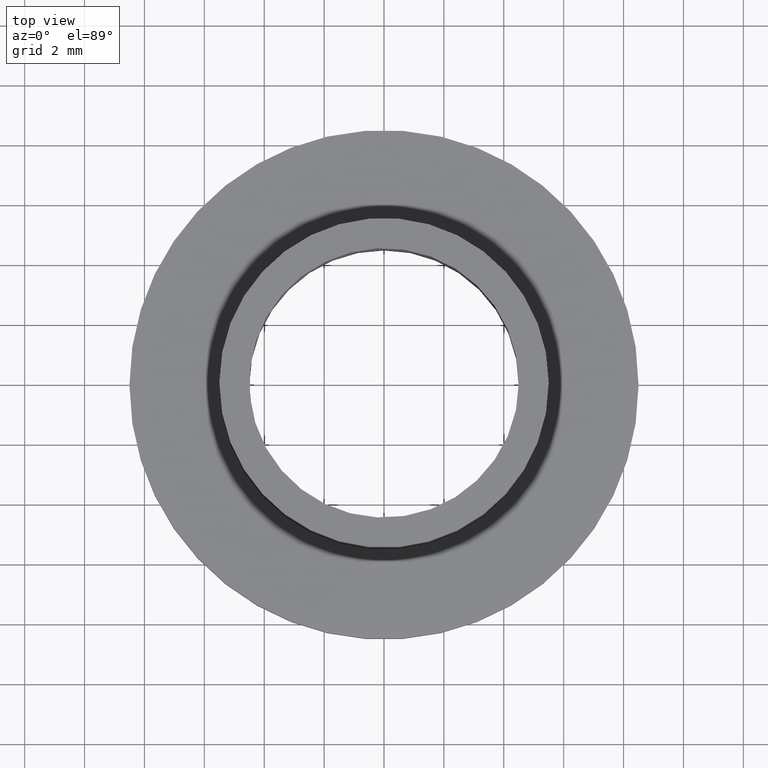
[diagram: clean part render]
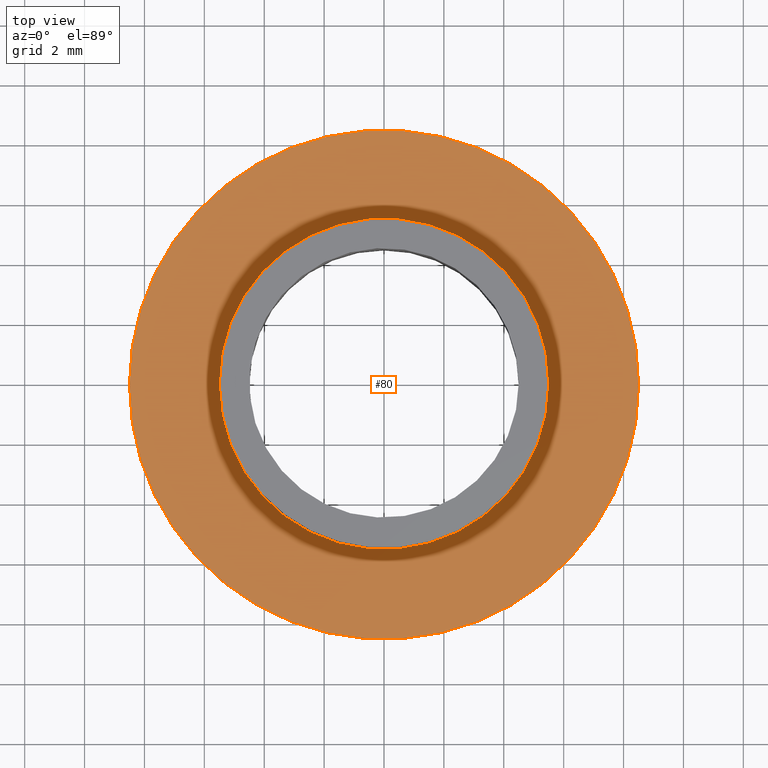
[diagram: same view with one face highlighted and labeled with its STEP entity id]
A machine part, top view. The second image highlights one B-rep face of the part: STEP entity #80.
In plain terms, the highlighted planar face has unit normal (0, 0, 1).
Its self-contained STEP definition (entity closure, byte-faithful):
#17=PLANE('',#94);
#23=FACE_BOUND('',#41,.T.);
#29=FACE_OUTER_BOUND('',#40,.T.);
#40=EDGE_LOOP('',(#70));
#41=EDGE_LOOP('',(#71));
#45=CIRCLE('',#88,5.5);
#46=CIRCLE('',#91,8.5);
#51=VERTEX_POINT('',#130);
#52=VERTEX_POINT('',#134);
#57=EDGE_CURVE('',#51,#51,#45,.T.);
#58=EDGE_CURVE('',#52,#52,#46,.T.);
#70=ORIENTED_EDGE('',*,*,#58,.T.);
#71=ORIENTED_EDGE('',*,*,#57,.T.);
#80=ADVANCED_FACE('',(#29,#23),#17,.T.);
#88=AXIS2_PLACEMENT_3D('',#131,#107,#108);
#91=AXIS2_PLACEMENT_3D('',#135,#113,#114);
#94=AXIS2_PLACEMENT_3D('',#139,#119,#120);
#107=DIRECTION('center_axis',(0.,0.,-1.));
#108=DIRECTION('ref_axis',(-1.,0.,0.));
#113=DIRECTION('center_axis',(0.,0.,1.));
#114=DIRECTION('ref_axis',(-1.,0.,0.));
#119=DIRECTION('center_axis',(0.,0.,1.));
#120=DIRECTION('ref_axis',(1.,0.,0.));
#130=CARTESIAN_POINT('',(5.5,6.73555739531044E-16,1.));
#131=CARTESIAN_POINT('Origin',(0.,0.,1.));
#134=CARTESIAN_POINT('',(8.5,1.04094977927525E-15,1.));
#135=CARTESIAN_POINT('Origin',(0.,0.,1.));
#139=CARTESIAN_POINT('Origin',(-5.22127393223979E-16,-2.17690789142188E-16,
1.));